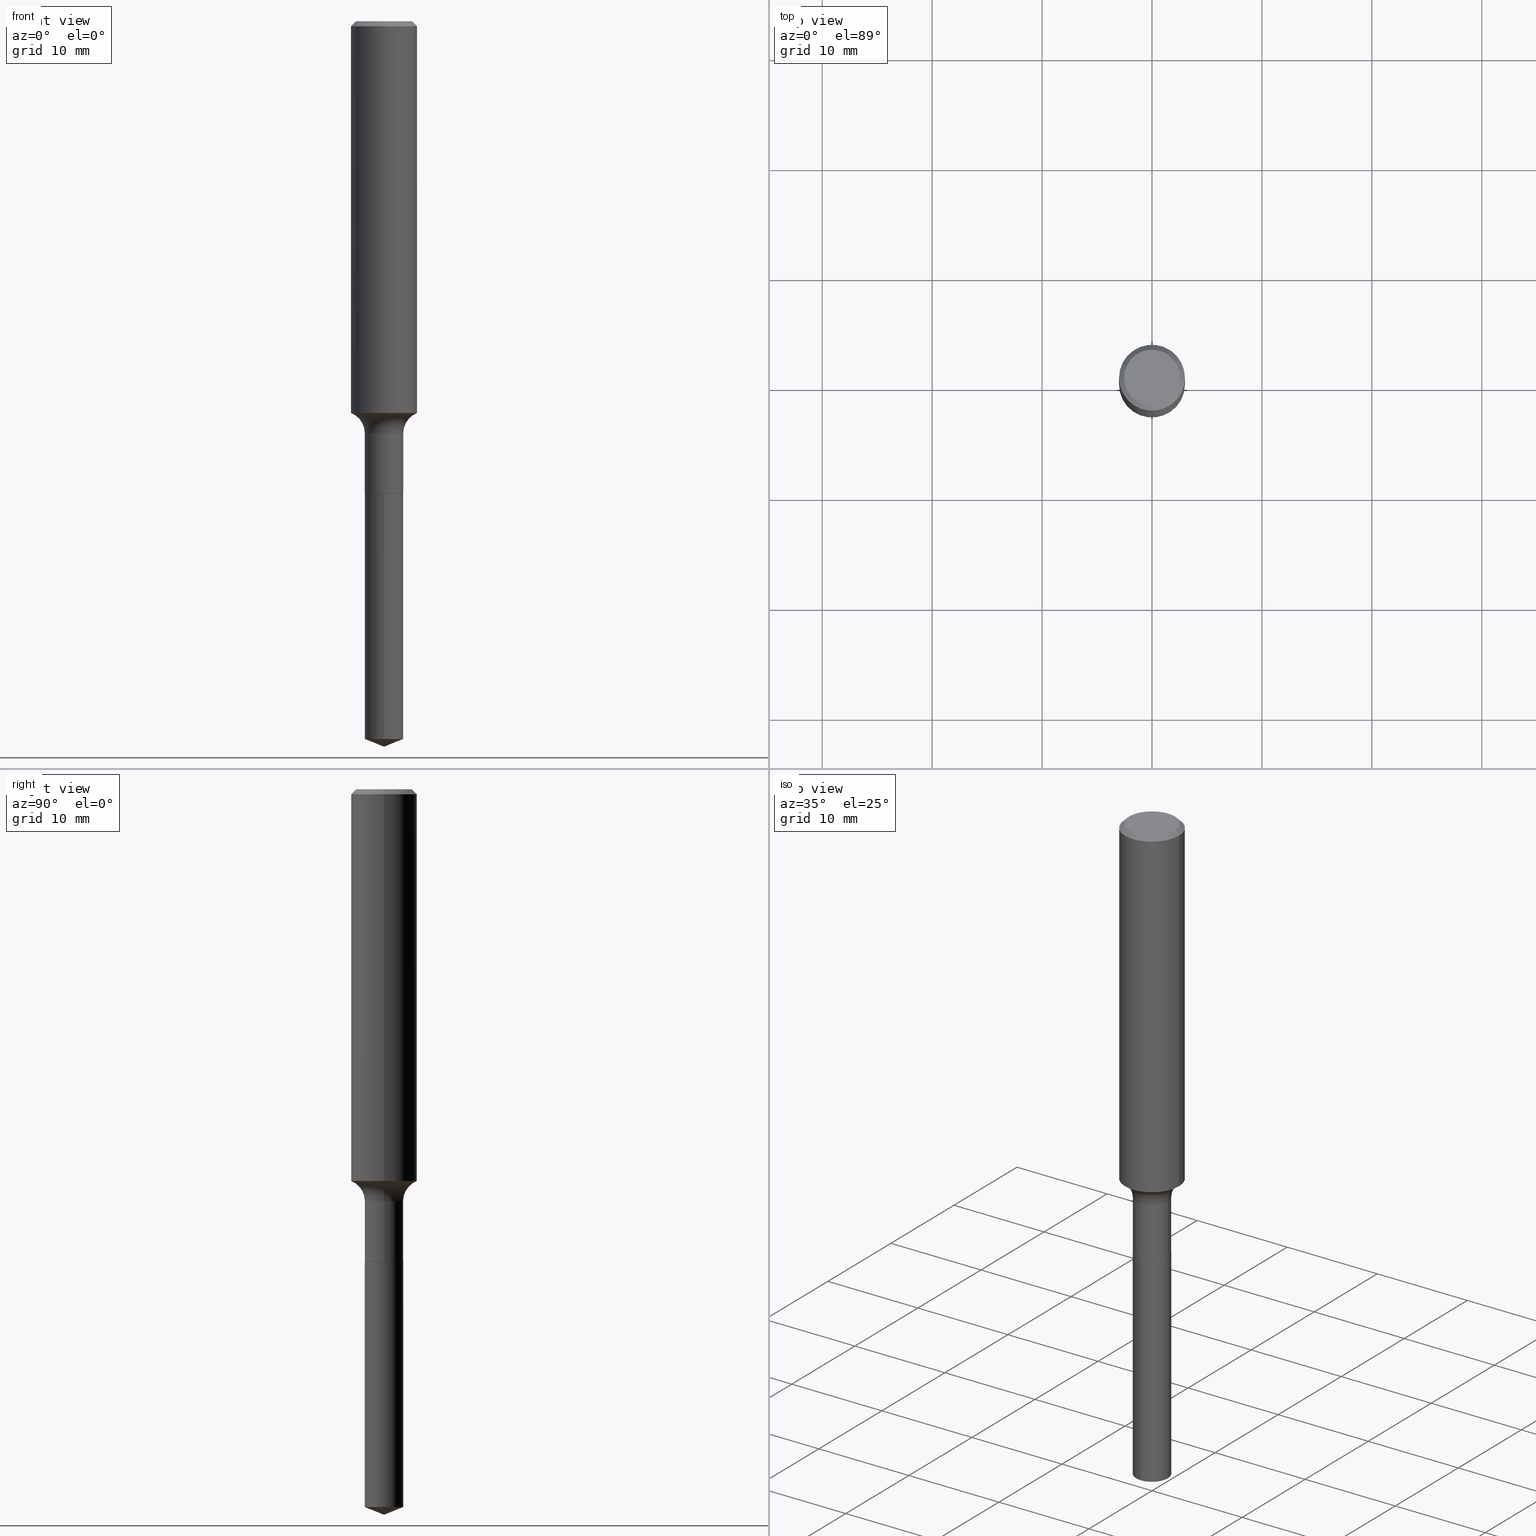
[diagram: canonical four-view strip — front | top / right | iso, engineering-drawing reading convention]
A machine part, canonical four-view strip (front | top / right | iso — engineering-drawing reading convention). The complete STEP part file that produces these views, byte-faithful:
ISO-10303-21;
HEADER;
FILE_DESCRIPTION (( 'STEP AP203' ),
    '1' );
FILE_NAME ('69228.STEP',
    '2024-04-19T17:26:39',
    ( '' ),
    ( '' ),
    'SwSTEP 2.0',
    'SolidWorks 2023',
    '' );
FILE_SCHEMA (( 'CONFIG_CONTROL_DESIGN' ));
ENDSEC;

DATA;
#1 = AXIS2_PLACEMENT_3D ( 'NONE', #414, #120, #237 ) ;
#2 = LOCAL_TIME ( 13, 26, 39.00000000000000000, #291 ) ;
#3 = ADVANCED_FACE ( 'NONE', ( #56 ), #136, .F. ) ;
#4 = CARTESIAN_POINT ( 'NONE',  ( 0.1181000000000000799, -8.246878922347486570E-16, 5.758764772215004644E-30 ) ) ;
#5 = ORIENTED_EDGE ( 'NONE', *, *, #352, .T. ) ;
#6 = CC_DESIGN_DATE_AND_TIME_ASSIGNMENT ( #443, #324, ( #335 ) ) ;
#7 = CARTESIAN_POINT ( 'NONE',  ( 3.430532145968479544E-29, -4.897890719217663237E-15, -1.402811656109412830 ) ) ;
#8 = PERSON ( 'UNSPECIFIED', 'UNSPECIFIED', 'UNSPECIFIED', ('UNSPECIFIED'), ('UNSPECIFIED'), ('UNSPECIFIED') ) ;
#9 = CARTESIAN_POINT ( 'NONE',  ( 0.000000000000000000, 0.000000000000000000, 0.000000000000000000 ) ) ;
#10 = VERTEX_POINT ( 'NONE', #204 ) ;
#11 = AXIS2_PLACEMENT_3D ( 'NONE', #212, #332, #221 ) ;
#12 = CIRCLE ( 'NONE', #396, 0.1181000000000001632 ) ;
#13 = FACE_OUTER_BOUND ( 'NONE', #318, .T. ) ;
#14 = EDGE_LOOP ( 'NONE', ( #164, #246, #393, #476 ) ) ;
#15 =( NAMED_UNIT ( * ) PLANE_ANGLE_UNIT ( ) SI_UNIT ( $, .RADIAN. ) );
#16 = DIRECTION ( 'NONE',  ( 1.000000000000000000, -6.982962677686273810E-15, 0.000000000000000000 ) ) ;
#17 = CARTESIAN_POINT ( 'NONE',  ( 4.895639449387719604E-16, 0.06889999999999105174, -2.570162593039957866 ) ) ;
#18 = ORIENTED_EDGE ( 'NONE', *, *, #165, .T. ) ;
#19 = VECTOR ( 'NONE', #41, 39.37007874015748143 ) ;
#20 = DIRECTION ( 'NONE',  ( 1.000000000000000000, -6.982962677686265922E-15, 4.876176775795934672E-29 ) ) ;
#21 = ADVANCED_FACE ( 'NONE', ( #132 ), #231, .T. ) ;
#22 = CIRCLE ( 'NONE', #251, 0.06890000000000000291 ) ;
#23 = ORIENTED_EDGE ( 'NONE', *, *, #288, .F. ) ;
#24 = CARTESIAN_POINT ( 'NONE',  ( -0.1468999999999999750, -4.107195140363705355E-15, -1.475300000000000056 ) ) ;
#25 = ORIENTED_EDGE ( 'NONE', *, *, #378, .F. ) ;
#26 = PERSON_AND_ORGANIZATION ( #8, #176 ) ;
#27 = ORIENTED_EDGE ( 'NONE', *, *, #193, .T. ) ;
#28 = EDGE_CURVE ( 'NONE', #91, #161, #170, .T. ) ;
#29 = AXIS2_PLACEMENT_3D ( 'NONE', #361, #202, #16 ) ;
#30 = LOCAL_TIME ( 13, 26, 39.00000000000000000, #297 ) ;
#31 = CYLINDRICAL_SURFACE ( 'NONE', #307, 0.06890000000000000291 ) ;
#32 = PERSON_AND_ORGANIZATION ( #8, #176 ) ;
#33 = DIRECTION ( 'NONE',  ( 1.000000000000000000, -6.982962677686265922E-15, 4.876176775795934672E-29 ) ) ;
#34 = FACE_OUTER_BOUND ( 'NONE', #171, .T. ) ;
#35 = DATE_AND_TIME ( #149, #95 ) ;
#36 = ADVANCED_FACE ( 'NONE', ( #259 ), #368, .T. ) ;
#37 = CARTESIAN_POINT ( 'NONE',  ( 4.138955954468343780E-29, -5.909332165992023872E-15, -1.692500000000000115 ) ) ;
#38 = VECTOR ( 'NONE', #371, 39.37007874015748143 ) ;
#39 = CIRCLE ( 'NONE', #162, 0.07800000000000006928 ) ;
#40 = CARTESIAN_POINT ( 'NONE',  ( 0.06889999999999997515, -5.632108547687876483E-15, -1.475300000000000056 ) ) ;
#41 = DIRECTION ( 'NONE',  ( -2.445468806185136877E-29, 3.491481338843145188E-15, 1.000000000000000000 ) ) ;
#42 = ADVANCED_FACE ( 'NONE', ( #482 ), #365, .F. ) ;
#43 = LINE ( 'NONE', #387, #419 ) ;
#44 = ORIENTED_EDGE ( 'NONE', *, *, #77, .T. ) ;
#45 = AXIS2_PLACEMENT_3D ( 'NONE', #9, #299, #122 ) ;
#46 = CARTESIAN_POINT ( 'NONE',  ( -0.06890000000000001679, -5.039720477320238409E-15, -1.692000000000000171 ) ) ;
#47 = VERTEX_POINT ( 'NONE', #40 ) ;
#48 = DIRECTION ( 'NONE',  ( 1.000000000000000000, -6.982962677686265922E-15, 0.000000000000000000 ) ) ;
#49 = DIRECTION ( 'NONE',  ( -2.445468806185136597E-29, 3.491481338843145583E-15, 1.000000000000000000 ) ) ;
#50 = EDGE_CURVE ( 'NONE', #468, #383, #250, .T. ) ;
#51 = CIRCLE ( 'NONE', #1, 0.06889999999999997515 ) ;
#52 = CYLINDRICAL_SURFACE ( 'NONE', #405, 0.06890000000000000291 ) ;
#53 = ORIENTED_EDGE ( 'NONE', *, *, #311, .F. ) ;
#54 = UNCERTAINTY_MEASURE_WITH_UNIT (LENGTH_MEASURE( 1.000000000000000082E-05 ), #135, 'distance_accuracy_value', 'NONE');
#55 = CARTESIAN_POINT ( 'NONE',  ( 6.290877960727020705E-29, -8.965618677130002712E-15, -2.570162593039957866 ) ) ;
#56 = FACE_OUTER_BOUND ( 'NONE', #93, .T. ) ;
#57 = CARTESIAN_POINT ( 'NONE',  ( -4.811261284925424219E-16, -0.06890000000000591485, -1.692499999999999671 ) ) ;
#58 = ORIENTED_EDGE ( 'NONE', *, *, #331, .T. ) ;
#59 =( NAMED_UNIT ( * ) SI_UNIT ( $, .STERADIAN. ) SOLID_ANGLE_UNIT ( ) );
#60 = EDGE_LOOP ( 'NONE', ( #197, #83 ) ) ;
#61 = CARTESIAN_POINT ( 'NONE',  ( 0.000000000000000000, 0.000000000000000000, 0.000000000000000000 ) ) ;
#62 = EDGE_CURVE ( 'NONE', #457, #252, #214, .T. ) ;
#63 = DIRECTION ( 'NONE',  ( 1.000000000000000000, -6.982962677686265922E-15, 4.876176775795935793E-29 ) ) ;
#64 = DIRECTION ( 'NONE',  ( -2.451878459129800558E-29, 3.482302351011597532E-15, 1.000000000000000000 ) ) ;
#65 = AXIS2_PLACEMENT_3D ( 'NONE', #160, #382, #339 ) ;
#66 = CARTESIAN_POINT ( 'NONE',  ( 4.138955954468343780E-29, -5.909332165992023872E-15, -1.692500000000000115 ) ) ;
#67 = APPROVAL_PERSON_ORGANIZATION ( #370, #148, #181 ) ;
#68 = PERSON_AND_ORGANIZATION_ROLE ( 'creator' ) ;
#69 = DIRECTION ( 'NONE',  ( -2.445468806185136597E-29, 3.491481338843145583E-15, 1.000000000000000000 ) ) ;
#70 = ADVANCED_FACE ( 'NONE', ( #141 ), #333, .T. ) ;
#71 = PERSON_AND_ORGANIZATION_ROLE ( 'design_owner' ) ;
#72 = DIRECTION ( 'NONE',  ( -2.445468806185136597E-29, 3.491481338843145583E-15, 1.000000000000000000 ) ) ;
#73 = CARTESIAN_POINT ( 'NONE',  ( 6.290877960727020705E-29, -8.965618677130002712E-15, -2.570162593039957866 ) ) ;
#74 = AXIS2_PLACEMENT_3D ( 'NONE', #73, #295, #448 ) ;
#75 = CIRCLE ( 'NONE', #269, 0.06840000000000000246 ) ;
#76 = DIRECTION ( 'NONE',  ( -2.445468806185136877E-29, 3.491481338843145188E-15, 1.000000000000000000 ) ) ;
#77 = EDGE_CURVE ( 'NONE', #252, #276, #328, .T. ) ;
#78 = DIRECTION ( 'NONE',  ( -2.451878459129800558E-29, 3.482302351011597138E-15, 1.000000000000000000 ) ) ;
#79 = CC_DESIGN_DATE_AND_TIME_ASSIGNMENT ( #360, #289, ( #386 ) ) ;
#80 = DIRECTION ( 'NONE',  ( -2.445468806185136597E-29, 3.491481338843145583E-15, 1.000000000000000000 ) ) ;
#81 = AXIS2_PLACEMENT_3D ( 'NONE', #66, #218, #329 ) ;
#82 = DIRECTION ( 'NONE',  ( -2.445468806185136597E-29, 3.491481338843145583E-15, 1.000000000000000000 ) ) ;
#83 = ORIENTED_EDGE ( 'NONE', *, *, #28, .T. ) ;
#84 = EDGE_CURVE ( 'NONE', #134, #210, #461, .T. ) ;
#85 = DIRECTION ( 'NONE',  ( -2.451878459129800558E-29, 3.482302351011597138E-15, 1.000000000000000000 ) ) ;
#86 = DIRECTION ( 'NONE',  ( 2.451878459129799997E-29, -3.482302351011597532E-15, -1.000000000000000000 ) ) ;
#87 = EDGE_LOOP ( 'NONE', ( #126, #454, #381, #357 ) ) ;
#88 = AXIS2_PLACEMENT_3D ( 'NONE', #321, #177, #150 ) ;
#89 = AXIS2_PLACEMENT_3D ( 'NONE', #344, #302, #384 ) ;
#90 = FACE_OUTER_BOUND ( 'NONE', #272, .T. ) ;
#91 = VERTEX_POINT ( 'NONE', #220 ) ;
#92 = DIRECTION ( 'NONE',  ( -2.445468806185136597E-29, 3.491481338843145583E-15, 1.000000000000000000 ) ) ;
#93 = EDGE_LOOP ( 'NONE', ( #114, #275 ) ) ;
#94 = EDGE_LOOP ( 'NONE', ( #244, #96, #169 ) ) ;
#95 = LOCAL_TIME ( 13, 26, 39.00000000000000000, #438 ) ;
#96 = ORIENTED_EDGE ( 'NONE', *, *, #363, .T. ) ;
#97 = SHAPE_DEFINITION_REPRESENTATION ( #362, #455 ) ;
#98 = ADVANCED_FACE ( 'NONE', ( #254 ), #267, .T. ) ;
#99 = DIRECTION ( 'NONE',  ( -2.445468806185136597E-29, 3.491481338843145583E-15, 1.000000000000000000 ) ) ;
#100 = APPROVAL_STATUS ( 'not_yet_approved' ) ;
#101 = CARTESIAN_POINT ( 'NONE',  ( -0.1181000000000002603, -4.058739748284982673E-15, -1.402811656109412830 ) ) ;
#102 = PERSON_AND_ORGANIZATION ( #8, #176 ) ;
#103 = VECTOR ( 'NONE', #442, 39.37007874015748143 ) ;
#104 = CIRCLE ( 'NONE', #207, 0.06890000000000000291 ) ;
#105 = CARTESIAN_POINT ( 'NONE',  ( 4.332147990156998495E-31, -6.185159191760674092E-17, -0.01771500000000011954 ) ) ;
#106 = EDGE_CURVE ( 'NONE', #437, #468, #490, .T. ) ;
#107 = APPROVAL_ROLE ( '' ) ;
#108 = CARTESIAN_POINT ( 'NONE',  ( 4.332147990156998495E-31, -6.185159191760674092E-17, -0.01771500000000011954 ) ) ;
#109 = APPROVAL_DATE_TIME ( #408, #131 ) ;
#110 = CARTESIAN_POINT ( 'NONE',  ( 0.000000000000000000, 0.000000000000000000, 0.000000000000000000 ) ) ;
#111 = EDGE_CURVE ( 'NONE', #91, #210, #294, .T. ) ;
#112 = DIRECTION ( 'NONE',  ( -2.445468806185136877E-29, 3.491481338843145188E-15, 1.000000000000000000 ) ) ;
#113 = CIRCLE ( 'NONE', #233, 0.06889999999999997515 ) ;
#114 = ORIENTED_EDGE ( 'NONE', *, *, #62, .F. ) ;
#115 = PRODUCT_DEFINITION_FORMATION_WITH_SPECIFIED_SOURCE ( 'ANY', '', #483, .NOT_KNOWN. ) ;
#116 = LINE ( 'NONE', #271, #411 ) ;
#117 = ORIENTED_EDGE ( 'NONE', *, *, #188, .F. ) ;
#118 = DIRECTION ( 'NONE',  ( 1.000000000000000000, -6.982962677686273810E-15, 0.000000000000000000 ) ) ;
#119 = ORIENTED_EDGE ( 'NONE', *, *, #174, .T. ) ;
#120 = DIRECTION ( 'NONE',  ( -2.445468806185136597E-29, 3.491481338843145583E-15, 1.000000000000000000 ) ) ;
#121 = CIRCLE ( 'NONE', #65, 0.07800000000000006928 ) ;
#122 = DIRECTION ( 'NONE',  ( 1.000000000000000000, -6.982962677686266711E-15, 4.876176775795936353E-29 ) ) ;
#123 = ORIENTED_EDGE ( 'NONE', *, *, #288, .T. ) ;
#124 = FACE_OUTER_BOUND ( 'NONE', #426, .T. ) ;
#125 = ORIENTED_EDGE ( 'NONE', *, *, #224, .F. ) ;
#126 = ORIENTED_EDGE ( 'NONE', *, *, #418, .F. ) ;
#127 = AXIS2_PLACEMENT_3D ( 'NONE', #253, #147, #225 ) ;
#128 = CONICAL_SURFACE ( 'NONE', #155, 0.1180999999999999966, 0.7853981633974452814 ) ;
#129 = LOCAL_TIME ( 13, 26, 39.00000000000000000, #258 ) ;
#130 = DIRECTION ( 'NONE',  ( 2.445468806185136597E-29, -3.491481338843145583E-15, -1.000000000000000000 ) ) ;
#131 = APPROVAL ( #447, 'UNSPECIFIED' ) ;
#132 = FACE_OUTER_BOUND ( 'NONE', #323, .T. ) ;
#133 = DIRECTION ( 'NONE',  ( -1.000000000000000000, 6.982962677686265922E-15, -4.876176775795935793E-29 ) ) ;
#134 = VERTEX_POINT ( 'NONE', #180 ) ;
#135 =( CONVERSION_BASED_UNIT ( 'INCH', #474 ) LENGTH_UNIT ( ) NAMED_UNIT ( #326 ) );
#136 = PLANE ( 'NONE',  #300 ) ;
#137 = ADVANCED_FACE ( 'NONE', ( #410 ), #31, .T. ) ;
#138 = AXIS2_PLACEMENT_3D ( 'NONE', #105, #144, #400 ) ;
#139 = CIRCLE ( 'NONE', #255, 0.1181000000000001632 ) ;
#140 = MECHANICAL_CONTEXT ( 'NONE', #270, 'mechanical' ) ;
#141 = FACE_OUTER_BOUND ( 'NONE', #94, .T. ) ;
#142 = PERSON_AND_ORGANIZATION_ROLE ( 'design_supplier' ) ;
#143 = DIRECTION ( 'NONE',  ( 1.000000000000000000, -6.982962677686273810E-15, 0.000000000000000000 ) ) ;
#144 = DIRECTION ( 'NONE',  ( 2.445468806185136597E-29, -3.491481338843145583E-15, -1.000000000000000000 ) ) ;
#145 = PERSON_AND_ORGANIZATION_ROLE ( 'classification_officer' ) ;
#146 = APPROVAL_PERSON_ORGANIZATION ( #32, #340, #219 ) ;
#147 = DIRECTION ( 'NONE',  ( -2.445468806185136597E-29, 3.491481338843145583E-15, 1.000000000000000000 ) ) ;
#148 = APPROVAL ( #184, 'UNSPECIFIED' ) ;
#149 = CALENDAR_DATE ( 2024, 19, 4 ) ;
#150 = DIRECTION ( 'NONE',  ( 1.000000000000000000, -6.982962677686266711E-15, 4.875668750515085695E-29 ) ) ;
#151 = ADVANCED_FACE ( 'NONE', ( #34 ), #222, .T. ) ;
#152 = CARTESIAN_POINT ( 'NONE',  ( 4.138955954468343780E-29, -5.909332165992023872E-15, -1.692500000000000115 ) ) ;
#153 = DIRECTION ( 'NONE',  ( -6.474490251793178629E-15, -0.9271838545667862030, 0.3746065934159147903 ) ) ;
#154 = AXIS2_PLACEMENT_3D ( 'NONE', #290, #69, #186 ) ;
#155 = AXIS2_PLACEMENT_3D ( 'NONE', #353, #130, #432 ) ;
#156 = FACE_OUTER_BOUND ( 'NONE', #350, .T. ) ;
#157 = ORIENTED_EDGE ( 'NONE', *, *, #84, .T. ) ;
#158 = CARTESIAN_POINT ( 'NONE',  ( -0.06840000000000000246, -5.420671707558004028E-15, -1.692500000000000115 ) ) ;
#159 = EDGE_CURVE ( 'NONE', #437, #465, #435, .T. ) ;
#160 = CARTESIAN_POINT ( 'NONE',  ( 0.1468999999999999750, -6.176779636547406107E-15, -1.475300000000000056 ) ) ;
#161 = VERTEX_POINT ( 'NONE', #374 ) ;
#162 = AXIS2_PLACEMENT_3D ( 'NONE', #24, #424, #469 ) ;
#163 = LINE ( 'NONE', #322, #223 ) ;
#164 = ORIENTED_EDGE ( 'NONE', *, *, #434, .T. ) ;
#165 = EDGE_CURVE ( 'NONE', #276, #10, #199, .T. ) ;
#166 = DIRECTION ( 'NONE',  ( 1.000000000000000000, -6.982962677686270655E-15, 0.000000000000000000 ) ) ;
#167 = ORIENTED_EDGE ( 'NONE', *, *, #159, .T. ) ;
#168 = DIRECTION ( 'NONE',  ( -2.445468806185136877E-29, 3.491481338843145188E-15, 1.000000000000000000 ) ) ;
#169 = ORIENTED_EDGE ( 'NONE', *, *, #159, .F. ) ;
#170 = CIRCLE ( 'NONE', #88, 0.1003850000000000159 ) ;
#171 = EDGE_LOOP ( 'NONE', ( #242, #44, #459, #23 ) ) ;
#172 = DIRECTION ( 'NONE',  ( 1.000000000000000000, -6.982962677686268288E-15, 0.000000000000000000 ) ) ;
#173 = ORIENTED_EDGE ( 'NONE', *, *, #165, .F. ) ;
#174 = EDGE_CURVE ( 'NONE', #210, #134, #428, .T. ) ;
#175 = VERTEX_POINT ( 'NONE', #101 ) ;
#176 = ORGANIZATION ( 'UNSPECIFIED', 'UNSPECIFIED', '' ) ;
#177 = DIRECTION ( 'NONE',  ( -2.445468806185136597E-29, 3.491481338843145583E-15, 1.000000000000000000 ) ) ;
#178 = EDGE_CURVE ( 'NONE', #383, #468, #446, .T. ) ;
#179 = PERSON_AND_ORGANIZATION ( #8, #176 ) ;
#180 = CARTESIAN_POINT ( 'NONE',  ( -0.1180999999999999966, -1.640720184634955534E-15, -0.01771500000000011954 ) ) ;
#181 = APPROVAL_ROLE ( '' ) ;
#182 = CARTESIAN_POINT ( 'NONE',  ( 4.137733220065251539E-29, -5.907586425322602368E-15, -1.692000000000000171 ) ) ;
#183 = VECTOR ( 'NONE', #64, 39.37007874015748143 ) ;
#184 = APPROVAL_STATUS ( 'not_yet_approved' ) ;
#185 = AXIS2_PLACEMENT_3D ( 'NONE', #355, #86, #285 ) ;
#186 = DIRECTION ( 'NONE',  ( 1.000000000000000000, -6.982962677686268288E-15, 4.883557194083113462E-29 ) ) ;
#187 = CARTESIAN_POINT ( 'NONE',  ( 6.370170491050010118E-29, -9.047021507928130745E-15, -2.597999999999999865 ) ) ;
#188 = EDGE_CURVE ( 'NONE', #175, #266, #12, .T. ) ;
#189 = CYLINDRICAL_SURFACE ( 'NONE', #334, 0.06890000000000000291 ) ;
#190 = CARTESIAN_POINT ( 'NONE',  ( 6.348283561601534327E-29, -9.078092381737920851E-15, -2.597999999999999865 ) ) ;
#191 = AXIS2_PLACEMENT_3D ( 'NONE', #416, #463, #265 ) ;
#192 = ORIENTED_EDGE ( 'NONE', *, *, #213, .F. ) ;
#193 = EDGE_CURVE ( 'NONE', #252, #457, #75, .T. ) ;
#194 = FACE_OUTER_BOUND ( 'NONE', #313, .T. ) ;
#195 = ORIENTED_EDGE ( 'NONE', *, *, #77, .F. ) ;
#196 = DIRECTION ( 'NONE',  ( -0.7071067811865453523, 2.468850131082234184E-15, -0.7071067811865496822 ) ) ;
#197 = ORIENTED_EDGE ( 'NONE', *, *, #224, .T. ) ;
#198 = DIRECTION ( 'NONE',  ( -2.451878459129800558E-29, 3.482302351011597138E-15, 1.000000000000000000 ) ) ;
#199 = CIRCLE ( 'NONE', #366, 0.06890000000000000291 ) ;
#200 = VERTEX_POINT ( 'NONE', #268 ) ;
#201 = EDGE_CURVE ( 'NONE', #175, #134, #303, .T. ) ;
#202 = DIRECTION ( 'NONE',  ( -2.445468806185136597E-29, 3.491481338843145583E-15, 1.000000000000000000 ) ) ;
#203 = PLANE ( 'NONE',  #478 ) ;
#204 = CARTESIAN_POINT ( 'NONE',  ( 0.06890000000000000291, -6.388712553815186107E-15, -1.692000000000000171 ) ) ;
#205 = DIRECTION ( 'NONE',  ( -6.982962677686265922E-15, -1.000000000000000000, 0.000000000000000000 ) ) ;
#206 = ORIENTED_EDGE ( 'NONE', *, *, #174, .F. ) ;
#207 = AXIS2_PLACEMENT_3D ( 'NONE', #55, #198, #205 ) ;
#208 = VERTEX_POINT ( 'NONE', #228 ) ;
#209 = CALENDAR_DATE ( 2024, 19, 4 ) ;
#210 = VERTEX_POINT ( 'NONE', #456 ) ;
#211 = APPROVAL_DATE_TIME ( #336, #148 ) ;
#212 = CARTESIAN_POINT ( 'NONE',  ( -9.017151609802586951E-28, 1.280359608115290548E-13, 36.77207874015748246 ) ) ;
#213 = EDGE_CURVE ( 'NONE', #266, #210, #379, .T. ) ;
#214 = CIRCLE ( 'NONE', #127, 0.06840000000000000246 ) ;
#215 = CIRCLE ( 'NONE', #191, 0.1003850000000000159 ) ;
#216 = APPROVAL_DATE_TIME ( #35, #340 ) ;
#217 = CC_DESIGN_SECURITY_CLASSIFICATION ( #335, ( #115 ) ) ;
#218 = DIRECTION ( 'NONE',  ( -2.451878459129800558E-29, 3.482302351011597138E-15, 1.000000000000000000 ) ) ;
#219 = APPROVAL_ROLE ( '' ) ;
#220 = CARTESIAN_POINT ( 'NONE',  ( 0.1003850000000000159, -7.803837484803599345E-16, -2.049109640502812012E-17 ) ) ;
#221 = DIRECTION ( 'NONE',  ( -6.982962677686265133E-15, -1.000000000000000000, 3.498761904101830713E-15 ) ) ;
#222 = CONICAL_SURFACE ( 'NONE', #287, 0.06840000000000000246, 0.7853981633975591903 ) ;
#223 = VECTOR ( 'NONE', #312, 39.37007874015748143 ) ;
#224 = EDGE_CURVE ( 'NONE', #161, #91, #215, .T. ) ;
#225 = DIRECTION ( 'NONE',  ( 1.000000000000000000, -6.982962677686273810E-15, 0.000000000000000000 ) ) ;
#226 = DIRECTION ( 'NONE',  ( -2.445468806185136597E-29, 3.491481338843145583E-15, 1.000000000000000000 ) ) ;
#227 = CC_DESIGN_PERSON_AND_ORGANIZATION_ASSIGNMENT ( #489, #142, ( #115 ) ) ;
#228 = CARTESIAN_POINT ( 'NONE',  ( 6.369980236819220801E-29, -9.047021507928130745E-15, -2.597999999999999865 ) ) ;
#229 = ORIENTED_EDGE ( 'NONE', *, *, #213, .T. ) ;
#230 = ADVANCED_FACE ( 'NONE', ( #232 ), #189, .T. ) ;
#231 = CONICAL_SURFACE ( 'NONE', #29, 0.06840000000000000246, 0.7853981633975591903 ) ;
#232 = FACE_OUTER_BOUND ( 'NONE', #14, .T. ) ;
#233 = AXIS2_PLACEMENT_3D ( 'NONE', #279, #245, #172 ) ;
#234 = AXIS2_PLACEMENT_3D ( 'NONE', #316, #92, #358 ) ;
#235 = ORIENTED_EDGE ( 'NONE', *, *, #378, .T. ) ;
#236 = CC_DESIGN_PERSON_AND_ORGANIZATION_ASSIGNMENT ( #440, #449, ( #115 ) ) ;
#237 = DIRECTION ( 'NONE',  ( 1.000000000000000000, -6.982962677686268288E-15, 0.000000000000000000 ) ) ;
#238 = ORIENTED_EDGE ( 'NONE', *, *, #106, .F. ) ;
#239 = LINE ( 'NONE', #187, #342 ) ;
#240 = ORIENTED_EDGE ( 'NONE', *, *, #391, .T. ) ;
#241 = CARTESIAN_POINT ( 'NONE',  ( 0.06840000000000000246, -6.386966813145765392E-15, -1.692500000000000115 ) ) ;
#242 = ORIENTED_EDGE ( 'NONE', *, *, #62, .T. ) ;
#243 = PLANE ( 'NONE',  #185 ) ;
#244 = ORIENTED_EDGE ( 'NONE', *, *, #331, .F. ) ;
#245 = DIRECTION ( 'NONE',  ( -2.445468806185136597E-29, 3.491481338843145583E-15, 1.000000000000000000 ) ) ;
#246 = ORIENTED_EDGE ( 'NONE', *, *, #106, .T. ) ;
#247 = EDGE_CURVE ( 'NONE', #200, #47, #51, .T. ) ;
#248 = DIRECTION ( 'NONE',  ( 2.438088387897960049E-29, -3.491481338843145188E-15, -1.000000000000000000 ) ) ;
#249 = ORIENTED_EDGE ( 'NONE', *, *, #352, .F. ) ;
#250 = CIRCLE ( 'NONE', #341, 0.06890000000000000291 ) ;
#251 = AXIS2_PLACEMENT_3D ( 'NONE', #420, #82, #48 ) ;
#252 = VERTEX_POINT ( 'NONE', #158 ) ;
#253 = CARTESIAN_POINT ( 'NONE',  ( 4.138955954468343780E-29, -5.909332165992023872E-15, -1.692500000000000115 ) ) ;
#254 = FACE_OUTER_BOUND ( 'NONE', #347, .T. ) ;
#255 = AXIS2_PLACEMENT_3D ( 'NONE', #389, #49, #166 ) ;
#256 = DIRECTION ( 'NONE',  ( 1.000000000000000000, 0.000000000000000000, 0.000000000000000000 ) ) ;
#257 = DIRECTION ( 'NONE',  ( 1.000000000000000000, -6.982962677686266711E-15, 4.876176775795936353E-29 ) ) ;
#258 = COORDINATED_UNIVERSAL_TIME_OFFSET ( 5, 0, .BEHIND. ) ;
#259 = FACE_OUTER_BOUND ( 'NONE', #421, .T. ) ;
#260 = CARTESIAN_POINT ( 'NONE',  ( 4.895639449387503653E-16, 0.06889999999999409097, -1.692500000000000338 ) ) ;
#261 = VECTOR ( 'NONE', #76, 39.37007874015748143 ) ;
#262 = LINE ( 'NONE', #190, #356 ) ;
#263 = CARTESIAN_POINT ( 'NONE',  ( 4.138955954468343780E-29, -5.909332165992023872E-15, -1.692500000000000115 ) ) ;
#264 = EDGE_LOOP ( 'NONE', ( #25, #18, #5, #306 ) ) ;
#265 = DIRECTION ( 'NONE',  ( 1.000000000000000000, -6.982962677686266711E-15, 4.875668750515085695E-29 ) ) ;
#266 = VERTEX_POINT ( 'NONE', #380 ) ;
#267 = CONICAL_SURFACE ( 'NONE', #138, 0.1180999999999999966, 0.7853981633974452814 ) ;
#268 = CARTESIAN_POINT ( 'NONE',  ( -0.06889999999999997515, -5.039720477320238409E-15, -1.475300000000000056 ) ) ;
#269 = AXIS2_PLACEMENT_3D ( 'NONE', #152, #80, #118 ) ;
#270 = APPLICATION_CONTEXT ( 'configuration controlled 3d designs of mechanical parts and assemblies' ) ;
#271 = CARTESIAN_POINT ( 'NONE',  ( 0.06840000000000000246, -6.386966813145765392E-15, -1.692500000000000115 ) ) ;
#272 = EDGE_LOOP ( 'NONE', ( #117, #433, #283, #417 ) ) ;
#273 = EDGE_CURVE ( 'NONE', #266, #47, #121, .T. ) ;
#274 = CARTESIAN_POINT ( 'NONE',  ( -4.811261284925210241E-16, -0.06890000000000898184, -2.570162593039957866 ) ) ;
#275 = ORIENTED_EDGE ( 'NONE', *, *, #193, .F. ) ;
#276 = VERTEX_POINT ( 'NONE', #46 ) ;
#277 = AXIS2_PLACEMENT_3D ( 'NONE', #305, #78, #458 ) ;
#278 = APPROVAL_PERSON_ORGANIZATION ( #102, #131, #107 ) ;
#279 = CARTESIAN_POINT ( 'NONE',  ( 3.607800129764931825E-29, -5.150982419195292745E-15, -1.475300000000000056 ) ) ;
#280 = ORIENTED_EDGE ( 'NONE', *, *, #50, .T. ) ;
#281 = ADVANCED_FACE ( 'NONE', ( #194 ), #319, .T. ) ;
#282 = CARTESIAN_POINT ( 'NONE',  ( 4.895639449387719604E-16, 0.06889999999999409097, -1.692500000000000338 ) ) ;
#283 = ORIENTED_EDGE ( 'NONE', *, *, #247, .T. ) ;
#284 = PRODUCT_RELATED_PRODUCT_CATEGORY ( 'detail', '', ( #483 ) ) ;
#285 = DIRECTION ( 'NONE',  ( 6.982962677686265922E-15, 1.000000000000000000, -3.482302351011597532E-15 ) ) ;
#286 = CARTESIAN_POINT ( 'NONE',  ( 4.138955954468343780E-29, -5.909332165992023872E-15, -1.692500000000000115 ) ) ;
#287 = AXIS2_PLACEMENT_3D ( 'NONE', #480, #402, #143 ) ;
#288 = EDGE_CURVE ( 'NONE', #457, #10, #116, .T. ) ;
#289 = DATE_TIME_ROLE ( 'creation_date' ) ;
#290 = CARTESIAN_POINT ( 'NONE',  ( 3.607800129764931825E-29, -5.150982419195292745E-15, -1.475300000000000056 ) ) ;
#291 = COORDINATED_UNIVERSAL_TIME_OFFSET ( 5, 0, .BEHIND. ) ;
#292 = DIRECTION ( 'NONE',  ( 1.000000000000000000, -6.982962677686266711E-15, 0.000000000000000000 ) ) ;
#293 = CALENDAR_DATE ( 2024, 19, 4 ) ;
#294 = LINE ( 'NONE', #364, #38 ) ;
#295 = DIRECTION ( 'NONE',  ( -2.451878459129800558E-29, 3.482302351011597138E-15, 1.000000000000000000 ) ) ;
#296 = ADVANCED_FACE ( 'NONE', ( #156 ), #345, .T. ) ;
#297 = COORDINATED_UNIVERSAL_TIME_OFFSET ( 5, 0, .BEHIND. ) ;
#298 = DIRECTION ( 'NONE',  ( -6.982962677686265922E-15, -1.000000000000000000, 3.964946289788480896E-15 ) ) ;
#299 = DIRECTION ( 'NONE',  ( -2.445468806185136597E-29, 3.491481338843145583E-15, 1.000000000000000000 ) ) ;
#300 = AXIS2_PLACEMENT_3D ( 'NONE', #286, #351, #63 ) ;
#301 = EDGE_CURVE ( 'NONE', #10, #276, #22, .T. ) ;
#302 = DIRECTION ( 'NONE',  ( -2.451878459129800558E-29, 3.482302351011597138E-15, 1.000000000000000000 ) ) ;
#303 = LINE ( 'NONE', #308, #261 ) ;
#304 = ORIENTED_EDGE ( 'NONE', *, *, #50, .F. ) ;
#305 = CARTESIAN_POINT ( 'NONE',  ( 4.138955954468343780E-29, -5.909332165992023872E-15, -1.692500000000000115 ) ) ;
#306 = ORIENTED_EDGE ( 'NONE', *, *, #247, .F. ) ;
#307 = AXIS2_PLACEMENT_3D ( 'NONE', #110, #409, #33 ) ;
#308 = CARTESIAN_POINT ( 'NONE',  ( -0.1181000000000000799, 8.391509709326788873E-16, -5.809262341591047988E-30 ) ) ;
#309 =( GEOMETRIC_REPRESENTATION_CONTEXT ( 3 ) GLOBAL_UNCERTAINTY_ASSIGNED_CONTEXT ( ( #54 ) ) GLOBAL_UNIT_ASSIGNED_CONTEXT ( ( #135, #15, #59 ) ) REPRESENTATION_CONTEXT ( 'NONE', 'WORKASPACE' ) );
#310 = MANIFOLD_SOLID_BREP ( 'Body-Move/Copy2[2]', #466 ) ;
#311 = EDGE_CURVE ( 'NONE', #161, #134, #43, .T. ) ;
#312 = DIRECTION ( 'NONE',  ( -2.451878459129800558E-29, 3.482302351011597532E-15, 1.000000000000000000 ) ) ;
#313 = EDGE_LOOP ( 'NONE', ( #399, #58, #429 ) ) ;
#314 = CARTESIAN_POINT ( 'NONE',  ( 2.505516853152066359E-46, -3.577214035530481610E-32, -1.024554820251665005E-17 ) ) ;
#315 = ORIENTED_EDGE ( 'NONE', *, *, #111, .F. ) ;
#316 = CARTESIAN_POINT ( 'NONE',  ( 3.607800129764931825E-29, -5.150982419195292745E-15, -1.475300000000000056 ) ) ;
#317 = ADVANCED_FACE ( 'NONE', ( #346 ), #412, .T. ) ;
#318 = EDGE_LOOP ( 'NONE', ( #397, #280 ) ) ;
#319 = CONICAL_SURFACE ( 'NONE', #89, 97.44436430772833546, 1.186823891356144633 ) ;
#320 = CC_DESIGN_PERSON_AND_ORGANIZATION_ASSIGNMENT ( #179, #68, ( #386 ) ) ;
#321 = CARTESIAN_POINT ( 'NONE',  ( 5.011033706304132718E-46, -7.154428071060963220E-32, -2.049109640503330010E-17 ) ) ;
#322 = CARTESIAN_POINT ( 'NONE',  ( -4.811261284925423233E-16, -0.06890000000000590097, -1.692499999999999671 ) ) ;
#323 = EDGE_LOOP ( 'NONE', ( #195, #27, #123, #173 ) ) ;
#324 = DATE_TIME_ROLE ( 'classification_date' ) ;
#325 = CARTESIAN_POINT ( 'NONE',  ( 4.332147990156998495E-31, -6.185159191760674092E-17, -0.01771500000000011954 ) ) ;
#326 = DIMENSIONAL_EXPONENTS ( 1.000000000000000000, 0.000000000000000000, 0.000000000000000000, 0.000000000000000000, 0.000000000000000000, 0.000000000000000000, 0.000000000000000000 ) ;
#327 = VECTOR ( 'NONE', #112, 39.37007874015748143 ) ;
#328 = LINE ( 'NONE', #439, #103 ) ;
#329 = DIRECTION ( 'NONE',  ( -6.982962677686265922E-15, -1.000000000000000000, 3.964946289788480896E-15 ) ) ;
#330 = COORDINATED_UNIVERSAL_TIME_OFFSET ( 5, 0, .BEHIND. ) ;
#331 = EDGE_CURVE ( 'NONE', #208, #437, #239, .T. ) ;
#332 = DIRECTION ( 'NONE',  ( -2.451878459129800558E-29, 3.482302351011597138E-15, 1.000000000000000000 ) ) ;
#333 = CONICAL_SURFACE ( 'NONE', #11, 97.44436430772833546, 1.186823891356144633 ) ;
#334 = AXIS2_PLACEMENT_3D ( 'NONE', #263, #85, #453 ) ;
#335 = SECURITY_CLASSIFICATION ( '', '', #401 ) ;
#336 = DATE_AND_TIME ( #209, #488 ) ;
#337 = DIRECTION ( 'NONE',  ( -2.451878459129800558E-29, 3.482302351011597138E-15, 1.000000000000000000 ) ) ;
#338 = DIRECTION ( 'NONE',  ( 6.588037525764790502E-15, 0.9271838545667887566, 0.3746065934159082955 ) ) ;
#339 = DIRECTION ( 'NONE',  ( 1.000000000000000000, -6.982962677686264344E-15, 0.000000000000000000 ) ) ;
#340 = APPROVAL ( #100, 'UNSPECIFIED' ) ;
#341 = AXIS2_PLACEMENT_3D ( 'NONE', #37, #337, #298 ) ;
#342 = VECTOR ( 'NONE', #338, 39.37007874015748854 ) ;
#343 = CC_DESIGN_APPROVAL ( #131, ( #335 ) ) ;
#344 = CARTESIAN_POINT ( 'NONE',  ( -9.017151609802586951E-28, 1.280359608115290548E-13, 36.77207874015748246 ) ) ;
#345 = CYLINDRICAL_SURFACE ( 'NONE', #277, 0.06890000000000000291 ) ;
#346 = FACE_OUTER_BOUND ( 'NONE', #385, .T. ) ;
#347 = EDGE_LOOP ( 'NONE', ( #431, #388, #119, #53 ) ) ;
#348 = FACE_OUTER_BOUND ( 'NONE', #395, .T. ) ;
#349 = TOROIDAL_SURFACE ( 'NONE', #234, 0.1468999999999999750, 0.07800000000000006928 ) ;
#350 = EDGE_LOOP ( 'NONE', ( #238, #167, #240, #304 ) ) ;
#351 = DIRECTION ( 'NONE',  ( -2.438088387897960049E-29, 3.491481338843145188E-15, 1.000000000000000000 ) ) ;
#352 = EDGE_CURVE ( 'NONE', #10, #47, #491, .T. ) ;
#353 = CARTESIAN_POINT ( 'NONE',  ( 4.332147990156998495E-31, -6.185159191760674092E-17, -0.01771500000000011954 ) ) ;
#354 = ORIENTED_EDGE ( 'NONE', *, *, #201, .F. ) ;
#355 = CARTESIAN_POINT ( 'NONE',  ( 4.138955954468343780E-29, -5.909332165992023872E-15, -1.692500000000000115 ) ) ;
#356 = VECTOR ( 'NONE', #153, 39.37007874015748143 ) ;
#357 = ORIENTED_EDGE ( 'NONE', *, *, #464, .T. ) ;
#358 = DIRECTION ( 'NONE',  ( 1.000000000000000000, -6.982962677686268288E-15, 4.883557194083113462E-29 ) ) ;
#359 = ORIENTED_EDGE ( 'NONE', *, *, #311, .T. ) ;
#360 = DATE_AND_TIME ( #481, #30 ) ;
#361 = CARTESIAN_POINT ( 'NONE',  ( 4.138955954468343780E-29, -5.909332165992023872E-15, -1.692500000000000115 ) ) ;
#362 = PRODUCT_DEFINITION_SHAPE ( 'NONE', 'NONE',  #386 ) ;
#363 = EDGE_CURVE ( 'NONE', #208, #465, #262, .T. ) ;
#364 = CARTESIAN_POINT ( 'NONE',  ( 0.1180999999999999966, -8.720764054544246253E-16, -0.01771500000000011954 ) ) ;
#365 = TOROIDAL_SURFACE ( 'NONE', #154, 0.1468999999999999750, 0.07800000000000006928 ) ;
#366 = AXIS2_PLACEMENT_3D ( 'NONE', #182, #377, #444 ) ;
#367 = DIRECTION ( 'NONE',  ( 0.000000000000000000, 0.000000000000000000, 1.000000000000000000 ) ) ;
#368 = CYLINDRICAL_SURFACE ( 'NONE', #486, 0.1181000000000000799 ) ;
#369 = ADVANCED_FACE ( 'NONE', ( #13 ), #243, .F. ) ;
#370 = PERSON_AND_ORGANIZATION ( #8, #176 ) ;
#371 = DIRECTION ( 'NONE',  ( 0.7071067811865453523, -7.319954787623248157E-15, -0.7071067811865496822 ) ) ;
#372 = APPLICATION_PROTOCOL_DEFINITION ( 'international standard', 'config_control_design', 1994, #375 ) ;
#373 = CC_DESIGN_PERSON_AND_ORGANIZATION_ASSIGNMENT ( #26, #145, ( #335 ) ) ;
#374 = CARTESIAN_POINT ( 'NONE',  ( -0.1003850000000000159, 7.319105043583384717E-16, -2.049109640503831060E-17 ) ) ;
#375 = APPLICATION_CONTEXT ( 'configuration controlled 3d designs of mechanical parts and assemblies' ) ;
#376 = CC_DESIGN_APPROVAL ( #148, ( #115 ) ) ;
#377 = DIRECTION ( 'NONE',  ( -2.445468806185136597E-29, 3.491481338843145583E-15, 1.000000000000000000 ) ) ;
#378 = EDGE_CURVE ( 'NONE', #276, #200, #392, .T. ) ;
#379 = LINE ( 'NONE', #4, #19 ) ;
#380 = CARTESIAN_POINT ( 'NONE',  ( 0.1181000000000002603, -5.722578611452413077E-15, -1.402811656109412830 ) ) ;
#381 = ORIENTED_EDGE ( 'NONE', *, *, #273, .T. ) ;
#382 = DIRECTION ( 'NONE',  ( -6.982962677686266711E-15, -1.000000000000000000, 3.491481338843145583E-15 ) ) ;
#383 = VERTEX_POINT ( 'NONE', #57 ) ;
#384 = DIRECTION ( 'NONE',  ( -6.982962677686265133E-15, -1.000000000000000000, 3.498761904101830713E-15 ) ) ;
#385 = EDGE_LOOP ( 'NONE', ( #354, #423, #229, #390 ) ) ;
#386 = PRODUCT_DEFINITION ( 'UNKNOWN', '', #115, #398 ) ;
#387 = CARTESIAN_POINT ( 'NONE',  ( -0.1180999999999999966, 7.628363003171412752E-16, -0.01771500000000011954 ) ) ;
#388 = ORIENTED_EDGE ( 'NONE', *, *, #111, .T. ) ;
#389 = CARTESIAN_POINT ( 'NONE',  ( 3.430532145968479544E-29, -4.897890719217663237E-15, -1.402811656109412830 ) ) ;
#390 = ORIENTED_EDGE ( 'NONE', *, *, #84, .F. ) ;
#391 = EDGE_CURVE ( 'NONE', #465, #383, #163, .T. ) ;
#392 = LINE ( 'NONE', #427, #487 ) ;
#393 = ORIENTED_EDGE ( 'NONE', *, *, #178, .F. ) ;
#394 = DIRECTION ( 'NONE',  ( -2.445468806185136597E-29, 3.491481338843145583E-15, 1.000000000000000000 ) ) ;
#395 = EDGE_LOOP ( 'NONE', ( #470, #235, #413, #249 ) ) ;
#396 = AXIS2_PLACEMENT_3D ( 'NONE', #7, #226, #422 ) ;
#397 = ORIENTED_EDGE ( 'NONE', *, *, #178, .T. ) ;
#398 = DESIGN_CONTEXT ( 'detailed design', #375, 'design' ) ;
#399 = ORIENTED_EDGE ( 'NONE', *, *, #363, .F. ) ;
#400 = DIRECTION ( 'NONE',  ( -1.000000000000000000, 6.982962677686266711E-15, 0.000000000000000000 ) ) ;
#401 = SECURITY_CLASSIFICATION_LEVEL ( 'unclassified' ) ;
#402 = DIRECTION ( 'NONE',  ( -2.445468806185136597E-29, 3.491481338843145583E-15, 1.000000000000000000 ) ) ;
#403 = CLOSED_SHELL ( 'NONE', ( #230, #281, #70, #296, #369 ) ) ;
#404 = ADVANCED_FACE ( 'NONE', ( #90 ), #349, .F. ) ;
#405 = AXIS2_PLACEMENT_3D ( 'NONE', #430, #394, #20 ) ;
#406 = APPLICATION_PROTOCOL_DEFINITION ( 'international standard', 'config_control_design', 1994, #270 ) ;
#407 = EDGE_CURVE ( 'NONE', #266, #175, #139, .T. ) ;
#408 = DATE_AND_TIME ( #477, #129 ) ;
#409 = DIRECTION ( 'NONE',  ( -2.445468806185136597E-29, 3.491481338843145583E-15, 1.000000000000000000 ) ) ;
#410 = FACE_OUTER_BOUND ( 'NONE', #264, .T. ) ;
#411 = VECTOR ( 'NONE', #492, 39.37007874015748143 ) ;
#412 = CYLINDRICAL_SURFACE ( 'NONE', #45, 0.1181000000000000799 ) ;
#413 = ORIENTED_EDGE ( 'NONE', *, *, #464, .F. ) ;
#414 = CARTESIAN_POINT ( 'NONE',  ( 3.607800129764931825E-29, -5.150982419195292745E-15, -1.475300000000000056 ) ) ;
#415 = ORIENTED_EDGE ( 'NONE', *, *, #407, .T. ) ;
#416 = CARTESIAN_POINT ( 'NONE',  ( 5.011033706304132718E-46, -7.154428071060963220E-32, -2.049109640503330010E-17 ) ) ;
#417 = ORIENTED_EDGE ( 'NONE', *, *, #273, .F. ) ;
#418 = EDGE_CURVE ( 'NONE', #175, #200, #39, .T. ) ;
#419 = VECTOR ( 'NONE', #196, 39.37007874015748143 ) ;
#420 = CARTESIAN_POINT ( 'NONE',  ( 4.137733220065251539E-29, -5.907586425322602368E-15, -1.692000000000000171 ) ) ;
#421 = EDGE_LOOP ( 'NONE', ( #415, #472, #206, #192 ) ) ;
#422 = DIRECTION ( 'NONE',  ( 1.000000000000000000, -6.982962677686270655E-15, 0.000000000000000000 ) ) ;
#423 = ORIENTED_EDGE ( 'NONE', *, *, #188, .T. ) ;
#424 = DIRECTION ( 'NONE',  ( 7.105427357601001859E-15, 1.000000000000000000, -3.491481338843145583E-15 ) ) ;
#425 = ADVANCED_FACE ( 'NONE', ( #471 ), #203, .F. ) ;
#426 = EDGE_LOOP ( 'NONE', ( #315, #125, #359, #157 ) ) ;
#427 = CARTESIAN_POINT ( 'NONE',  ( -0.06890000000000000291, 4.895639449387090487E-16, -3.389146277185630017E-30 ) ) ;
#428 = CIRCLE ( 'NONE', #462, 0.1180999999999999966 ) ;
#429 = ORIENTED_EDGE ( 'NONE', *, *, #434, .F. ) ;
#430 = CARTESIAN_POINT ( 'NONE',  ( 0.000000000000000000, 0.000000000000000000, 0.000000000000000000 ) ) ;
#431 = ORIENTED_EDGE ( 'NONE', *, *, #28, .F. ) ;
#432 = DIRECTION ( 'NONE',  ( -1.000000000000000000, 6.982962677686266711E-15, 0.000000000000000000 ) ) ;
#433 = ORIENTED_EDGE ( 'NONE', *, *, #418, .T. ) ;
#434 = EDGE_CURVE ( 'NONE', #465, #437, #104, .T. ) ;
#435 = CIRCLE ( 'NONE', #74, 0.06890000000000000291 ) ;
#436 = AXIS2_PLACEMENT_3D ( 'NONE', #61, #367, #256 ) ;
#437 = VERTEX_POINT ( 'NONE', #17 ) ;
#438 = COORDINATED_UNIVERSAL_TIME_OFFSET ( 5, 0, .BEHIND. ) ;
#439 = CARTESIAN_POINT ( 'NONE',  ( -0.06840000000000000246, -5.423320934732115229E-15, -1.692500000000000115 ) ) ;
#440 = PERSON_AND_ORGANIZATION ( #8, #176 ) ;
#441 = ADVANCED_FACE ( 'NONE', ( #124 ), #128, .T. ) ;
#442 = DIRECTION ( 'NONE',  ( -0.7071067811866259545, 7.493145998870638150E-15, 0.7071067811864690800 ) ) ;
#443 = DATE_AND_TIME ( #293, #2 ) ;
#444 = DIRECTION ( 'NONE',  ( 1.000000000000000000, -6.982962677686265922E-15, 0.000000000000000000 ) ) ;
#445 = AXIS2_PLACEMENT_3D ( 'NONE', #325, #99, #450 ) ;
#446 = CIRCLE ( 'NONE', #81, 0.06890000000000000291 ) ;
#447 = APPROVAL_STATUS ( 'not_yet_approved' ) ;
#448 = DIRECTION ( 'NONE',  ( -6.982962677686265922E-15, -1.000000000000000000, 0.000000000000000000 ) ) ;
#449 = PERSON_AND_ORGANIZATION_ROLE ( 'creator' ) ;
#450 = DIRECTION ( 'NONE',  ( 1.000000000000000000, -6.982962677686266711E-15, 0.000000000000000000 ) ) ;
#451 = CARTESIAN_POINT ( 'NONE',  ( 0.06890000000000000291, -4.811261284925837385E-16, 3.359685798523399268E-30 ) ) ;
#452 = CC_DESIGN_APPROVAL ( #340, ( #386 ) ) ;
#453 = DIRECTION ( 'NONE',  ( -6.982962677686265922E-15, -1.000000000000000000, 3.964946289788480896E-15 ) ) ;
#454 = ORIENTED_EDGE ( 'NONE', *, *, #407, .F. ) ;
#455 = ADVANCED_BREP_SHAPE_REPRESENTATION ( '69228', ( #475, #310, #436 ), #309 ) ;
#456 = CARTESIAN_POINT ( 'NONE',  ( 0.1180999999999999966, -8.865394841523548556E-16, -0.01771500000000011954 ) ) ;
#457 = VERTEX_POINT ( 'NONE', #241 ) ;
#458 = DIRECTION ( 'NONE',  ( -6.982962677686265922E-15, -1.000000000000000000, 3.964946289788480896E-15 ) ) ;
#459 = ORIENTED_EDGE ( 'NONE', *, *, #301, .F. ) ;
#460 = CC_DESIGN_PERSON_AND_ORGANIZATION_ASSIGNMENT ( #484, #71, ( #483 ) ) ;
#461 = CIRCLE ( 'NONE', #445, 0.1180999999999999966 ) ;
#462 = AXIS2_PLACEMENT_3D ( 'NONE', #108, #72, #292 ) ;
#463 = DIRECTION ( 'NONE',  ( -2.445468806185136597E-29, 3.491481338843145583E-15, 1.000000000000000000 ) ) ;
#464 = EDGE_CURVE ( 'NONE', #47, #200, #113, .T. ) ;
#465 = VERTEX_POINT ( 'NONE', #274 ) ;
#466 = CLOSED_SHELL ( 'NONE', ( #151, #98, #36, #404, #473, #137, #42, #317, #441, #425, #3, #21 ) ) ;
#467 =( LENGTH_UNIT ( ) NAMED_UNIT ( * ) SI_UNIT ( $, .METRE. ) );
#468 = VERTEX_POINT ( 'NONE', #282 ) ;
#469 = DIRECTION ( 'NONE',  ( -1.000000000000000000, 7.105427357601005014E-15, 0.000000000000000000 ) ) ;
#470 = ORIENTED_EDGE ( 'NONE', *, *, #301, .T. ) ;
#471 = FACE_OUTER_BOUND ( 'NONE', #60, .T. ) ;
#472 = ORIENTED_EDGE ( 'NONE', *, *, #201, .T. ) ;
#473 = ADVANCED_FACE ( 'NONE', ( #348 ), #52, .T. ) ;
#474 = LENGTH_MEASURE_WITH_UNIT ( LENGTH_MEASURE( 0.02539999999999999897 ), #467 );
#475 = MANIFOLD_SOLID_BREP ( 'Body-Move/Copy2[1]', #403 ) ;
#476 = ORIENTED_EDGE ( 'NONE', *, *, #391, .F. ) ;
#477 = CALENDAR_DATE ( 2024, 19, 4 ) ;
#478 = AXIS2_PLACEMENT_3D ( 'NONE', #314, #248, #133 ) ;
#479 = CARTESIAN_POINT ( 'NONE',  ( 0.000000000000000000, 0.000000000000000000, 0.000000000000000000 ) ) ;
#480 = CARTESIAN_POINT ( 'NONE',  ( 4.138955954468343780E-29, -5.909332165992023872E-15, -1.692500000000000115 ) ) ;
#481 = CALENDAR_DATE ( 2024, 19, 4 ) ;
#482 = FACE_OUTER_BOUND ( 'NONE', #87, .T. ) ;
#483 = PRODUCT ( '69228', '69228', '', ( #140 ) ) ;
#484 = PERSON_AND_ORGANIZATION ( #8, #176 ) ;
#485 = DIRECTION ( 'NONE',  ( -2.445468806185136597E-29, 3.491481338843145583E-15, 1.000000000000000000 ) ) ;
#486 = AXIS2_PLACEMENT_3D ( 'NONE', #479, #485, #257 ) ;
#487 = VECTOR ( 'NONE', #168, 39.37007874015748143 ) ;
#488 = LOCAL_TIME ( 13, 26, 39.00000000000000000, #330 ) ;
#489 = PERSON_AND_ORGANIZATION ( #8, #176 ) ;
#490 = LINE ( 'NONE', #260, #183 ) ;
#491 = LINE ( 'NONE', #451, #327 ) ;
#492 = DIRECTION ( 'NONE',  ( 0.7071067811866259545, -2.468850131083078659E-15, 0.7071067811864690800 ) ) ;
ENDSEC;
END-ISO-10303-21;
